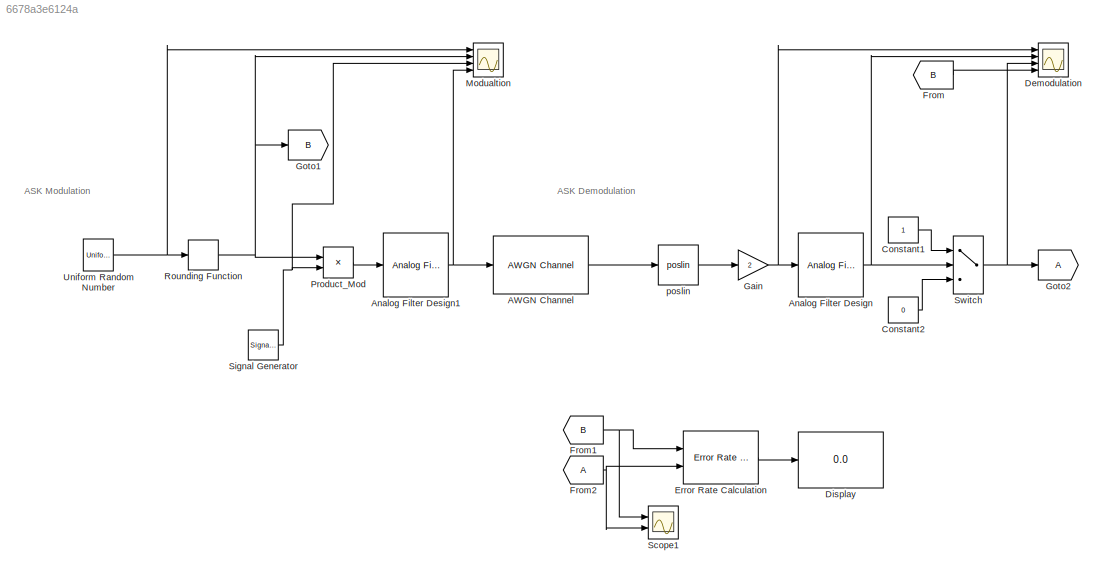
MODEL slx_6678a3e6124a
KIND model
CONFIG AbsTol = auto
CONFIG EnableMultiTasking = off
CONFIG FixedStep = auto
CONFIG MaxStep = 0.01
CONFIG MinStep = 0.001
CONFIG RelTol = 1e-3
CONFIG SampleTimeConstraint = Unconstrained
CONFIG Solver = VariableStepAuto
CONFIG SolverName = VariableStepAuto
CONFIG StartTime = 0.0
CONFIG StopTime = 10
BLOCK [Reference] AWGN Channel  REF=commchan3/AWGN
Channel
  Ports = [1, 1]
  SourceBlock = commchan3/AWGN\nChannel
  SourceProductBaseCode = CM
  SourceProductName = Communications System Toolbox
  SourceType = AWGN Channel
  UserDataPersistent = on
BLOCK [Reference] Analog Filter Design  REF=dsparch4/Analog
Filter Design
  Ports = [1, 1]
  SourceBlock = dsparch4/Analog\nFilter Design
  SourceProductBaseCode = DS
  SourceProductName = DSP System Toolbox
  SourceType = Analog Filter Design
BLOCK [Reference] Analog Filter Design1  REF=dsparch4/Analog
Filter Design
  Ports = [1, 1]
  SourceBlock = dsparch4/Analog\nFilter Design
  SourceProductBaseCode = DS
  SourceProductName = DSP System Toolbox
  SourceType = Analog Filter Design
BLOCK [Constant] Constant1
BLOCK [Constant] Constant2
  Value = 0
BLOCK [Scope] Demodulation
  NumInputPorts = 4
  Ports = [4]
  ScopeSpecificationString = Simulink.scopes.TimeScopeBlockCfg('CurrentConfiguration', extmgr.ConfigurationSet(extmgr.Configuration('Core','General UI',true,'FigureColor',[0 0 0]),extmgr.Configuration('Core','Source UI',true),extmgr.Configuration('Sources','WiredSimulink',true),extmgr.Configuration('Visuals','Time Domain',true,'SerializedDisplays',{struct('MinYLimReal','-3.55049','MaxYLimReal','5.11798','YLabelReal','','MinYL...<+3731ch>
BLOCK [Display] Display
  Decimation = 1
  Ports = [1]
BLOCK [Reference] Error Rate Calculation  REF=commsink2/Error Rate
Calculation
  Ports = [2, 1]
  SourceBlock = commsink2/Error Rate\nCalculation
  SourceProductBaseCode = CM
  SourceProductName = Communications System Toolbox
  SourceType = Error Rate Calculation
BLOCK [From] From
  GotoTag = B
BLOCK [From] From1
  GotoTag = B
BLOCK [From] From2
BLOCK [Gain] Gain
  Gain = 2
  OutDataTypeStr = Inherit: Inherit via internal rule
  ParamDataTypeStr = Inherit: Inherit via internal rule
  SaturateOnIntegerOverflow = off
BLOCK [Goto] Goto1
  GotoTag = B
BLOCK [Goto] Goto2
BLOCK [Scope] Modualtion
  NumInputPorts = 4
  Ports = [4]
  ScopeSpecificationString = Simulink.scopes.TimeScopeBlockCfg('CurrentConfiguration', extmgr.ConfigurationSet(extmgr.Configuration('Core','General UI',true,'FigureColor',[0 0 0]),extmgr.Configuration('Core','Source UI',true),extmgr.Configuration('Sources','WiredSimulink',true,'DataLoggingVariableName','ScopeData1'),extmgr.Configuration('Visuals','Time Domain',true,'SerializedDisplays',{struct('MinYLimReal','-0.07794','MaxYLi...<+3772ch>
BLOCK [Product] Product_Mod
  InputSameDT = off
  OutDataTypeStr = Inherit: Inherit via internal rule
  Ports = [2, 1]
  RndMeth = Floor
  SaturateOnIntegerOverflow = off
BLOCK [Rounding] Rounding Function
  Operator = round
BLOCK [Scope] Scope1
  NumInputPorts = 2
  Ports = [2]
  ScopeSpecificationString = Simulink.scopes.TimeScopeBlockCfg('CurrentConfiguration', extmgr.ConfigurationSet(extmgr.Configuration('Core','General UI',true),extmgr.Configuration('Core','Source UI',true),extmgr.Configuration('Sources','WiredSimulink',true,'DataLoggingVariableName','ScopeData3'),extmgr.Configuration('Visuals','Time Domain',true,'SerializedDisplays',{struct('MinYLimReal','-0.125','MaxYLimReal','1.125','YLabelRe...<+2059ch>
BLOCK [SignalGenerator] Signal Generator
  Frequency = 6
  Ports = [0, 1]
BLOCK [Switch] Switch
  RndMeth = Round
  Threshold = 0.5
BLOCK [UniformRandomNumber] Uniform Random Number
  Minimum = 0
  SampleTime = 1
BLOCK [Reference] poslin  REF=neural/Transfer Functions/poslin
  Ports = [1, 1]
  SourceBlock = neural/Transfer Functions/poslin
  SourceProductBaseCode = NN
  SourceProductName = Neural Network Toolbox
  SourceType = POSLIN
ANNOTATION (root): ASK Demodulation
ANNOTATION (root): ASK Modulation
LINE AWGN Channel:1 -> poslin:1
NET Analog Filter Design1:1 -> AWGN Channel:1, Modualtion:4
NET Analog Filter Design:1 -> Demodulation:2, Switch:2
LINE Constant1:1 -> Switch:1
LINE Constant2:1 -> Switch:3
LINE Error Rate Calculation:1 -> Display:1
NET From1:1 -> Error Rate Calculation:1, Scope1:1
NET From2:1 -> Error Rate Calculation:2, Scope1:2
LINE From:1 -> Demodulation:4
NET Gain:1 -> Analog Filter Design:1, Demodulation:1
LINE Product_Mod:1 -> Analog Filter Design1:1
NET Rounding Function:1 -> Goto1:1, Modualtion:2, Product_Mod:1
NET Signal Generator:1 -> Modualtion:3, Product_Mod:2
NET Switch:1 -> Demodulation:3, Goto2:1
NET Uniform Random Number:1 -> Modualtion:1, Rounding Function:1
LINE poslin:1 -> Gain:1
note: NET lines group one-source signal fan-out (src -> all destinations, sorted); 1:1 wires keep LINE
